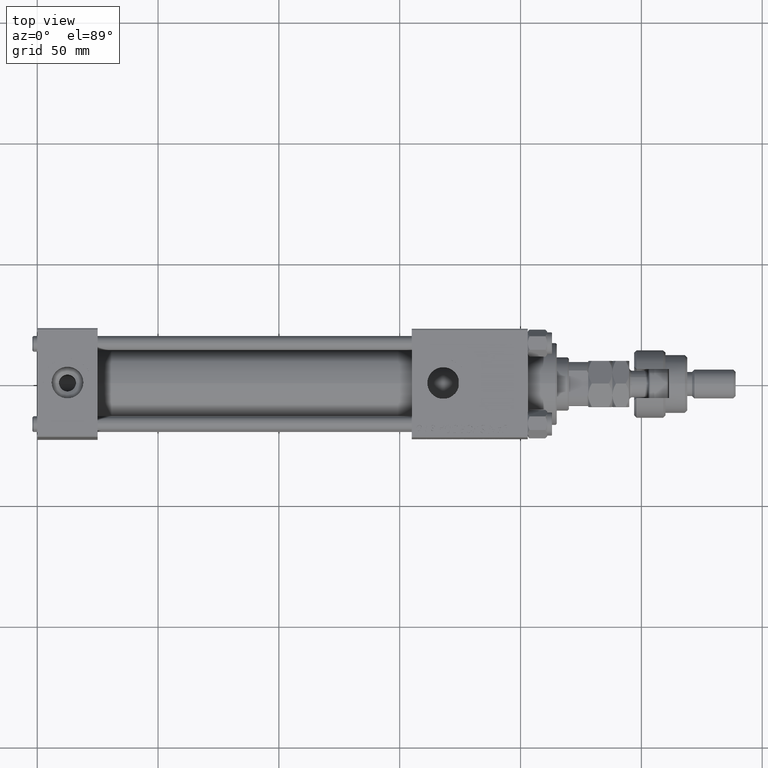
[diagram: clean part render]
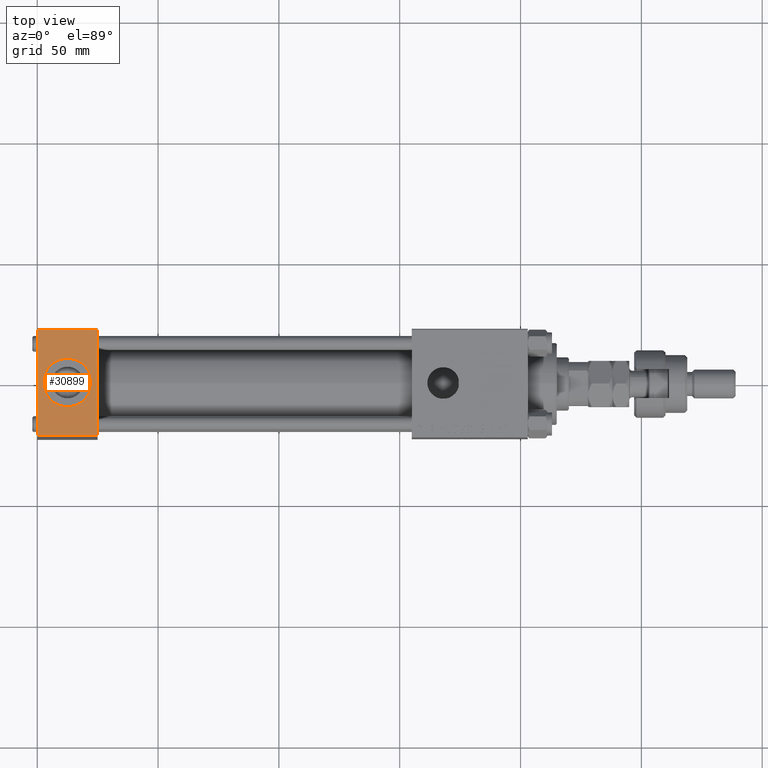
[diagram: same view with one face highlighted and labeled with its STEP entity id]
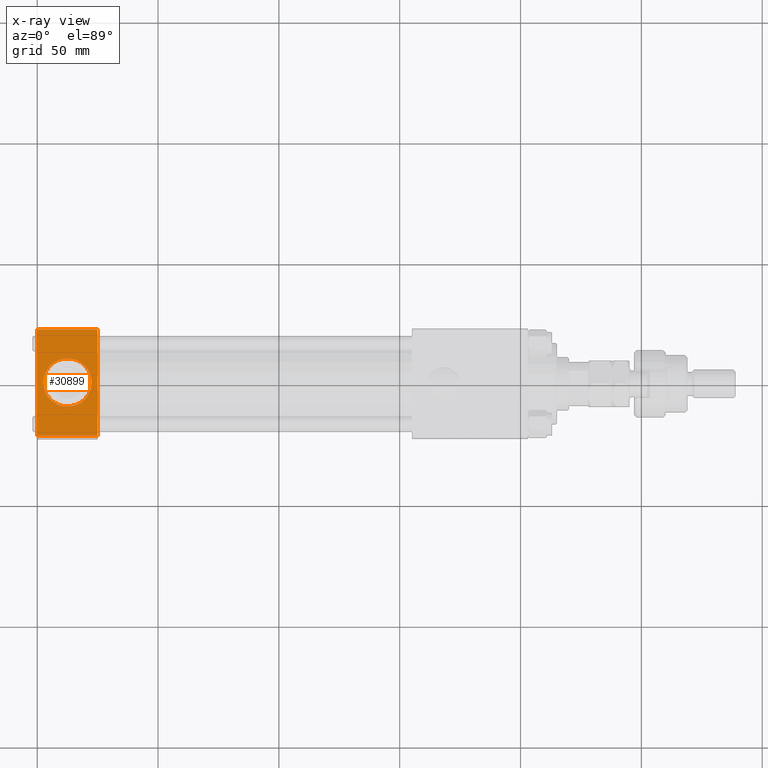
[diagram: x-ray of the same camera — body ghosted, the highlighted face saturated]
A machine part, top view. The second image highlights one B-rep face of the part: STEP entity #30899.
The next image is the same camera in x-ray: the body ghosted, the highlighted face saturated — about 0% of this face is hidden behind the body in this view.
In plain terms, the highlighted planar face has unit normal (0, 0, -1).
Its self-contained STEP definition (entity closure, byte-faithful):
#2574 = ORIENTED_EDGE ( 'NONE', *, *, #18765, .T. ) ;
#3429 = FACE_OUTER_BOUND ( 'NONE', #40021, .T. ) ;
#3955 = EDGE_CURVE ( 'NONE', #40355, #25795, #5891, .T. ) ;
#4472 = EDGE_CURVE ( 'NONE', #34288, #7165, #25291, .T. ) ;
#4910 = VECTOR ( 'NONE', #31237, 1000.000000000000000 ) ;
#5132 = CARTESIAN_POINT ( 'NONE',  ( 0.000000000000000000, -21.99999999999998934, 35.00000000000000000 ) ) ;
#5178 = DIRECTION ( 'NONE',  ( 0.000000000000000000, -1.000000000000000000, -1.541976423090495387E-16 ) ) ;
#5891 = LINE ( 'NONE', #51491, #4910 ) ;
#7165 = VERTEX_POINT ( 'NONE', #14238 ) ;
#8527 = VERTEX_POINT ( 'NONE', #12797 ) ;
#8605 = ORIENTED_EDGE ( 'NONE', *, *, #4472, .F. ) ;
#11704 = DIRECTION ( 'NONE',  ( 0.000000000000000000, 1.000000000000000000, 1.541976423090495387E-16 ) ) ;
#12521 = ORIENTED_EDGE ( 'NONE', *, *, #44200, .F. ) ;
#12797 = CARTESIAN_POINT ( 'NONE',  ( 25.00000000000000000, -21.99999999999998934, 35.00000000000000000 ) ) ;
#12965 = ORIENTED_EDGE ( 'NONE', *, *, #39480, .T. ) ;
#13448 = CARTESIAN_POINT ( 'NONE',  ( 0.000000000000000000, 22.50000000000000355, 35.00000000000000711 ) ) ;
#14238 = CARTESIAN_POINT ( 'NONE',  ( 22.50000000000000000, -5.396917480816734322E-15, 35.00000000000000000 ) ) ;
#15700 = CARTESIAN_POINT ( 'NONE',  ( 25.00000000000000000, 22.50000000000000355, 35.00000000000000711 ) ) ;
#15909 = LINE ( 'NONE', #52742, #51590 ) ;
#16350 = DIRECTION ( 'NONE',  ( 1.000000000000000000, 0.000000000000000000, 0.000000000000000000 ) ) ;
#18249 = LINE ( 'NONE', #13448, #34265 ) ;
#18765 = EDGE_CURVE ( 'NONE', #25795, #47591, #18249, .T. ) ;
#19724 = PLANE ( 'NONE',  #27381 ) ;
#20667 = DIRECTION ( 'NONE',  ( 1.000000000000000000, 0.000000000000000000, 0.000000000000000000 ) ) ;
#21530 = EDGE_LOOP ( 'NONE', ( #12521, #8605 ) ) ;
#23032 = DIRECTION ( 'NONE',  ( 0.000000000000000000, 0.000000000000000000, 1.000000000000000000 ) ) ;
#24664 = LINE ( 'NONE', #29733, #41331 ) ;
#25291 = CIRCLE ( 'NONE', #45742, 9.999999999999998224 ) ;
#25795 = VERTEX_POINT ( 'NONE', #36113 ) ;
#26488 = FACE_BOUND ( 'NONE', #21530, .T. ) ;
#27198 = CARTESIAN_POINT ( 'NONE',  ( 2.500000000000003997, -4.172270681669381263E-15, 35.00000000000000000 ) ) ;
#27381 = AXIS2_PLACEMENT_3D ( 'NONE', #15700, #47021, #11704 ) ;
#29733 = CARTESIAN_POINT ( 'NONE',  ( 25.00000000000000000, -22.00000000000000355, 35.00000000000000000 ) ) ;
#30899 = ADVANCED_FACE ( 'NONE', ( #26488, #3429 ), #19724, .F. ) ;
#31237 = DIRECTION ( 'NONE',  ( -1.000000000000000000, 0.000000000000000000, 0.000000000000000000 ) ) ;
#32218 = DIRECTION ( 'NONE',  ( 0.000000000000000000, -1.000000000000000000, -1.541976423090495387E-16 ) ) ;
#34265 = VECTOR ( 'NONE', #5178, 1000.000000000000000 ) ;
#34288 = VERTEX_POINT ( 'NONE', #27198 ) ;
#36113 = CARTESIAN_POINT ( 'NONE',  ( 0.000000000000000000, 22.00000000000000355, 35.00000000000000711 ) ) ;
#37482 = CARTESIAN_POINT ( 'NONE',  ( 25.00000000000000000, 22.00000000000000355, 35.00000000000000711 ) ) ;
#39327 = DIRECTION ( 'NONE',  ( 1.000000000000000000, 0.000000000000000000, 0.000000000000000000 ) ) ;
#39480 = EDGE_CURVE ( 'NONE', #47591, #8527, #24664, .T. ) ;
#40021 = EDGE_LOOP ( 'NONE', ( #2574, #12965, #50991, #42895 ) ) ;
#40355 = VERTEX_POINT ( 'NONE', #37482 ) ;
#40527 = CIRCLE ( 'NONE', #43936, 9.999999999999998224 ) ;
#41331 = VECTOR ( 'NONE', #20667, 1000.000000000000000 ) ;
#42098 = EDGE_CURVE ( 'NONE', #40355, #8527, #15909, .T. ) ;
#42895 = ORIENTED_EDGE ( 'NONE', *, *, #3955, .T. ) ;
#43936 = AXIS2_PLACEMENT_3D ( 'NONE', #52382, #48387, #16350 ) ;
#44200 = EDGE_CURVE ( 'NONE', #7165, #34288, #40527, .T. ) ;
#45742 = AXIS2_PLACEMENT_3D ( 'NONE', #51836, #23032, #39327 ) ;
#47021 = DIRECTION ( 'NONE',  ( 0.000000000000000000, 1.541976423090495387E-16, -1.000000000000000000 ) ) ;
#47591 = VERTEX_POINT ( 'NONE', #5132 ) ;
#48387 = DIRECTION ( 'NONE',  ( 0.000000000000000000, 0.000000000000000000, 1.000000000000000000 ) ) ;
#50991 = ORIENTED_EDGE ( 'NONE', *, *, #42098, .F. ) ;
#51491 = CARTESIAN_POINT ( 'NONE',  ( 0.000000000000000000, 22.00000000000000355, 35.00000000000000711 ) ) ;
#51590 = VECTOR ( 'NONE', #32218, 1000.000000000000000 ) ;
#51836 = CARTESIAN_POINT ( 'NONE',  ( 12.50000000000000000, -5.396917480816734322E-15, 35.00000000000000000 ) ) ;
#52382 = CARTESIAN_POINT ( 'NONE',  ( 12.50000000000000000, -5.396917480816734322E-15, 35.00000000000000000 ) ) ;
#52742 = CARTESIAN_POINT ( 'NONE',  ( 25.00000000000000000, 22.50000000000000355, 35.00000000000000711 ) ) ;